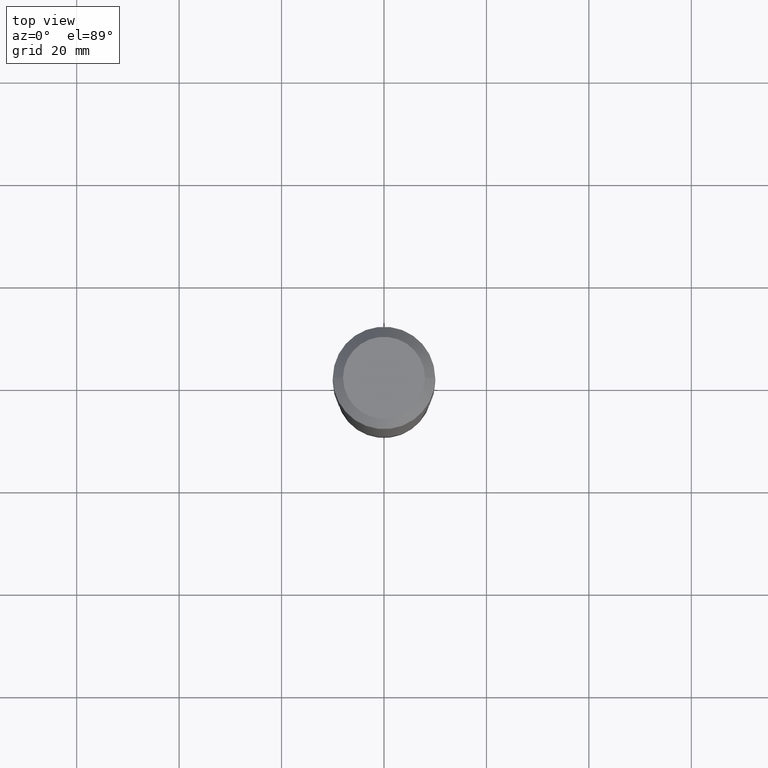
[diagram: clean part render]
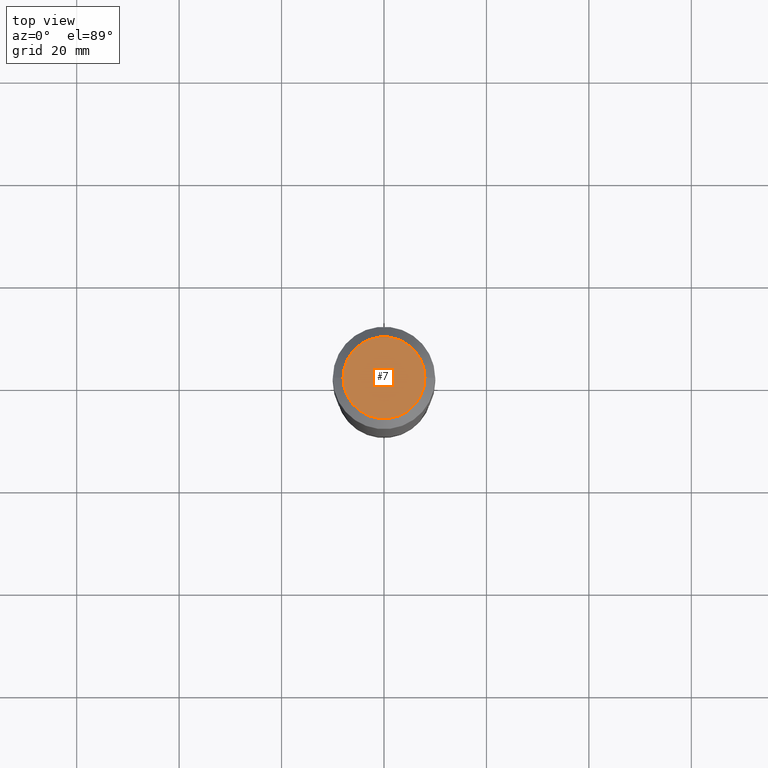
[diagram: same view with one face highlighted and labeled with its STEP entity id]
A machine part, top view. The second image highlights one B-rep face of the part: STEP entity #7.
In plain terms, the highlighted planar face has unit normal (0, -0, -1).
Its self-contained STEP definition (entity closure, byte-faithful):
#7 = ADVANCED_FACE ( 'NONE', ( #381 ), #8, .F. ) ;
#8 = PLANE ( 'NONE',  #375 ) ;
#48 = DIRECTION ( 'NONE',  ( 2.438088387897960049E-29, -3.491481338843145188E-15, -1.000000000000000000 ) ) ;
#82 = EDGE_LOOP ( 'NONE', ( #481, #151 ) ) ;
#95 = CARTESIAN_POINT ( 'NONE',  ( -9.427742298522567634E-47, 1.346031739168368355E-32, 3.855188123715870730E-18 ) ) ;
#138 = CIRCLE ( 'NONE', #233, 0.3149600000000000177 ) ;
#151 = ORIENTED_EDGE ( 'NONE', *, *, #412, .T. ) ;
#233 = AXIS2_PLACEMENT_3D ( 'NONE', #95, #498, #461 ) ;
#243 = VERTEX_POINT ( 'NONE', #306 ) ;
#258 = DIRECTION ( 'NONE',  ( 1.000000000000000000, -6.982962677686265922E-15, 4.876223630392693006E-29 ) ) ;
#280 = AXIS2_PLACEMENT_3D ( 'NONE', #288, #506, #258 ) ;
#288 = CARTESIAN_POINT ( 'NONE',  ( -9.427742298522567634E-47, 1.346031739168368355E-32, 3.855188123715870730E-18 ) ) ;
#306 = CARTESIAN_POINT ( 'NONE',  ( 0.3149600000000000177, -2.568339875860642378E-15, 3.855188123732540039E-18 ) ) ;
#312 = VERTEX_POINT ( 'NONE', #515 ) ;
#323 = EDGE_CURVE ( 'NONE', #312, #243, #330, .T. ) ;
#326 = DIRECTION ( 'NONE',  ( -1.000000000000000000, 6.982962677686265922E-15, -4.876176775795935793E-29 ) ) ;
#330 = CIRCLE ( 'NONE', #280, 0.3149600000000000177 ) ;
#375 = AXIS2_PLACEMENT_3D ( 'NONE', #465, #48, #326 ) ;
#381 = FACE_OUTER_BOUND ( 'NONE', #82, .T. ) ;
#412 = EDGE_CURVE ( 'NONE', #243, #312, #138, .T. ) ;
#461 = DIRECTION ( 'NONE',  ( 1.000000000000000000, -6.982962677686265922E-15, 4.876223630392693006E-29 ) ) ;
#465 = CARTESIAN_POINT ( 'NONE',  ( -4.713871149261283817E-47, 6.730158695841841775E-33, 1.927594061857935365E-18 ) ) ;
#481 = ORIENTED_EDGE ( 'NONE', *, *, #323, .T. ) ;
#498 = DIRECTION ( 'NONE',  ( -2.445468806185136597E-29, 3.491481338843145583E-15, 1.000000000000000000 ) ) ;
#506 = DIRECTION ( 'NONE',  ( -2.445468806185136597E-29, 3.491481338843145583E-15, 1.000000000000000000 ) ) ;
#515 = CARTESIAN_POINT ( 'NONE',  ( -0.3149600000000000177, 2.336813545274319235E-15, 3.855188123700009542E-18 ) ) ;